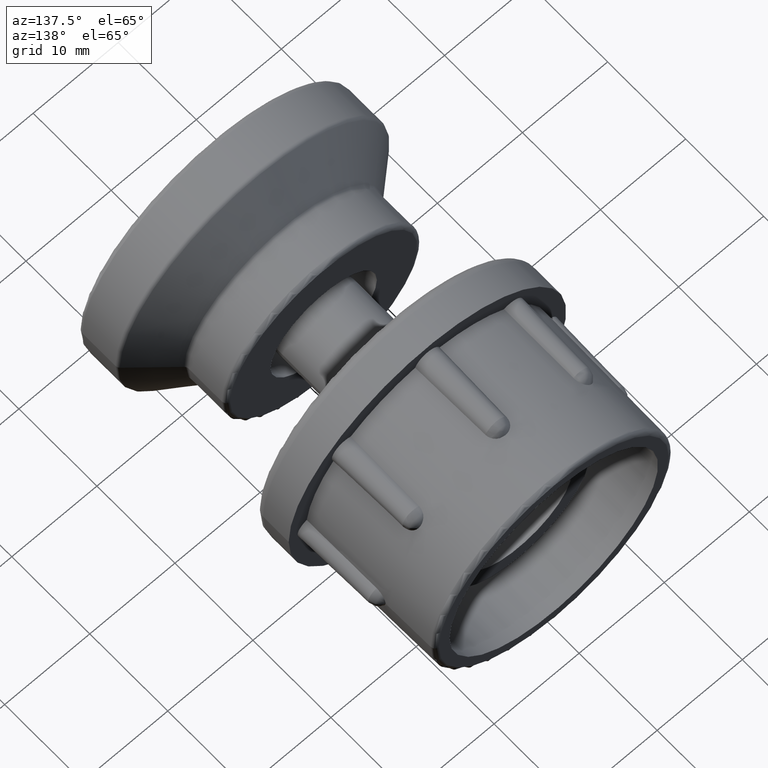
[diagram: clean part render]
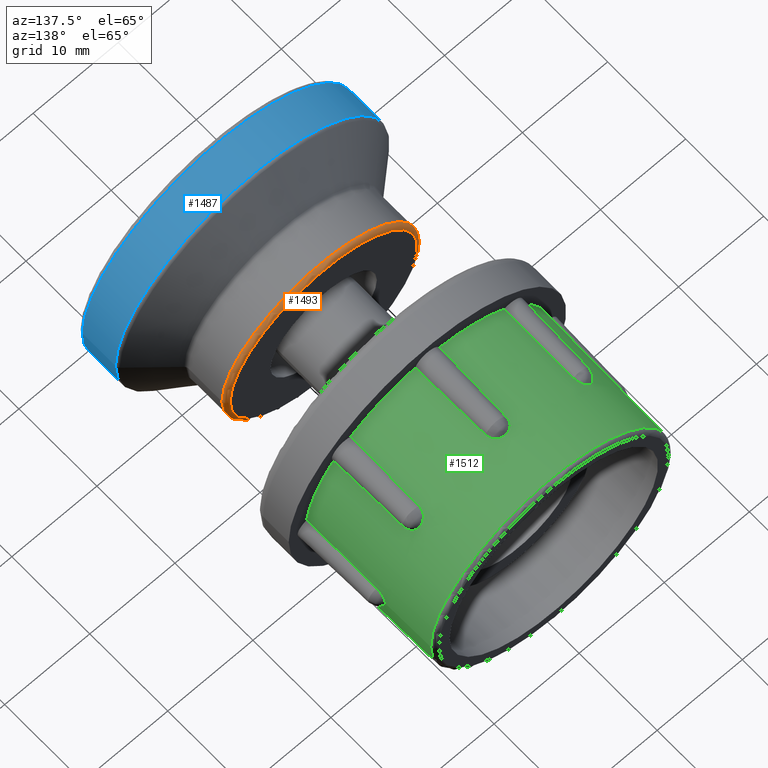
[diagram: same view with three faces highlighted in distinct colors, each labeled with its STEP entity id]
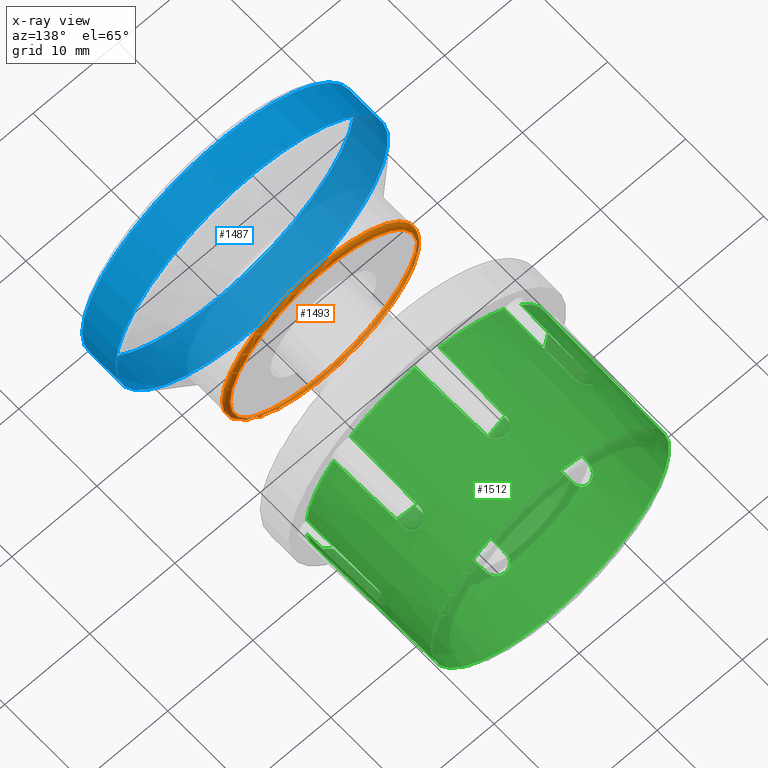
[diagram: x-ray of the same camera — body ghosted, the three highlighted faces saturated]
A machine part, auxiliary view with three faces highlighted in distinct colors.
The next image is the same camera in x-ray (body ghosted, the three faces saturated) — at least one of them is partly hidden behind the body in this view.
Their STEP definitions:

[orange] entity #1493 — the highlighted toroidal blend (fillet) surface has major radius 11 mm and minor (blend) radius 0.5 mm.
#54=FACE_BOUND('',#347,.T.);
#96=CIRCLE('',#1609,11.5);
#97=CIRCLE('',#1611,11.);
#169=TOROIDAL_SURFACE('',#1610,11.,0.5);
#244=FACE_OUTER_BOUND('',#346,.T.);
#346=EDGE_LOOP('',(#1114));
#347=EDGE_LOOP('',(#1115));
#690=VERTEX_POINT('',#2475);
#691=VERTEX_POINT('',#2478);
#866=EDGE_CURVE('',#690,#690,#96,.T.);
#867=EDGE_CURVE('',#691,#691,#97,.T.);
#1114=ORIENTED_EDGE('',*,*,#867,.T.);
#1115=ORIENTED_EDGE('',*,*,#866,.T.);
#1493=ADVANCED_FACE('',(#244,#54),#169,.T.);
#1609=AXIS2_PLACEMENT_3D('',#2476,#1877,#1878);
#1610=AXIS2_PLACEMENT_3D('',#2477,#1879,#1880);
#1611=AXIS2_PLACEMENT_3D('',#2479,#1881,#1882);
#1877=DIRECTION('center_axis',(-6.34413156928661E-17,1.,0.));
#1878=DIRECTION('ref_axis',(-1.,-6.63720286460691E-17,1.22464679914735E-16));
#1879=DIRECTION('center_axis',(6.34413156928661E-17,-1.,0.));
#1880=DIRECTION('ref_axis',(0.,0.,-1.));
#1881=DIRECTION('center_axis',(6.34413156928661E-17,-1.,0.));
#1882=DIRECTION('ref_axis',(-1.,-6.34413156928661E-17,1.22464679914735E-16));
#2475=CARTESIAN_POINT('',(11.5,13.5,-2.81668763803891E-15));
#2476=CARTESIAN_POINT('Origin',(-8.56457761853692E-16,13.5,0.));
#2477=CARTESIAN_POINT('Origin',(-8.56457761853692E-16,13.5,0.));
#2478=CARTESIAN_POINT('',(11.,14.,0.));
#2479=CARTESIAN_POINT('Origin',(-8.88178419700125E-16,14.,0.));

[blue] entity #1487 — the highlighted cylindrical surface (bore or boss wall) has radius 16 mm, axis along (0, -1, 0).
#48=FACE_BOUND('',#335,.T.);
#89=CIRCLE('',#1596,16.);
#91=CIRCLE('',#1599,16.);
#238=FACE_OUTER_BOUND('',#334,.T.);
#334=EDGE_LOOP('',(#1102));
#335=EDGE_LOOP('',(#1103));
#683=VERTEX_POINT('',#2455);
#685=VERTEX_POINT('',#2460);
#859=EDGE_CURVE('',#683,#683,#89,.T.);
#861=EDGE_CURVE('',#685,#685,#91,.T.);
#1102=ORIENTED_EDGE('',*,*,#861,.F.);
#1103=ORIENTED_EDGE('',*,*,#859,.F.);
#1452=CYLINDRICAL_SURFACE('',#1598,16.);
#1487=ADVANCED_FACE('',(#238,#48),#1452,.T.);
#1596=AXIS2_PLACEMENT_3D('',#2456,#1851,#1852);
#1598=AXIS2_PLACEMENT_3D('',#2459,#1855,#1856);
#1599=AXIS2_PLACEMENT_3D('',#2461,#1857,#1858);
#1851=DIRECTION('center_axis',(6.34413156928661E-17,-1.,0.));
#1852=DIRECTION('ref_axis',(-1.,-6.50521303491303E-17,1.22464679914735E-16));
#1855=DIRECTION('center_axis',(6.34413156928661E-17,-1.,0.));
#1856=DIRECTION('ref_axis',(1.,0.,0.));
#1857=DIRECTION('center_axis',(-6.34413156928661E-17,1.,0.));
#1858=DIRECTION('ref_axis',(-1.,-6.28837260041592E-17,1.22464679914735E-16));
#2455=CARTESIAN_POINT('',(16.,0.500000000000001,0.));
#2456=CARTESIAN_POINT('Origin',(-3.17206578464331E-17,0.5,0.));
#2459=CARTESIAN_POINT('Origin',(-1.58603289232165E-16,2.5,0.));
#2460=CARTESIAN_POINT('',(16.,4.77546696784487,-3.91886975727153E-15));
#2461=CARTESIAN_POINT('Origin',(-3.029619074879E-16,4.77546696784487,0.));

[green] entity #1512 — the highlighted conical surface has half-angle 0.884 deg.
#36=CONICAL_SURFACE('',#1647,14.125,0.88412394813542);
#62=FACE_BOUND('',#374,.T.);
#113=CIRCLE('',#1646,14.0075969887228);
#114=CIRCLE('',#1648,14.0956790123457);
#115=CIRCLE('',#1649,14.25);
#116=CIRCLE('',#1650,14.0956790123457);
#117=CIRCLE('',#1651,14.25);
#118=CIRCLE('',#1652,14.0956790123457);
#119=CIRCLE('',#1653,14.25);
#120=CIRCLE('',#1654,14.0956790123457);
#121=CIRCLE('',#1655,14.25);
#122=CIRCLE('',#1656,14.0956790123457);
#123=CIRCLE('',#1657,14.25);
#124=CIRCLE('',#1658,14.0956790123457);
#125=CIRCLE('',#1659,14.25);
#126=CIRCLE('',#1660,14.0956790123457);
#127=CIRCLE('',#1661,14.25);
#128=CIRCLE('',#1662,14.0956790123457);
#129=CIRCLE('',#1663,14.25);
#263=FACE_OUTER_BOUND('',#373,.T.);
#373=EDGE_LOOP('',(#1193,#1194,#1195,#1196,#1197,#1198,#1199,#1200,#1201,
#1202,#1203,#1204,#1205,#1206,#1207,#1208,#1209,#1210,#1211,#1212,#1213,
#1214,#1215,#1216,#1217,#1218,#1219,#1220,#1221,#1222,#1223,#1224,#1225,
#1226,#1227,#1228,#1229,#1230,#1231,#1232,#1233,#1234,#1235,#1236,#1237,
#1238,#1239,#1240));
#374=EDGE_LOOP('',(#1241));
#593=B_SPLINE_CURVE_WITH_KNOTS('',3,(#2527,#2528,#2529,#2530,#2531,#2532,
#2533,#2534,#2535,#2536,#2537,#2538),.UNSPECIFIED.,.F.,.F.,(4,2,2,2,2,4),
(-0.000379013862063512,0.,0.0453814855915477,0.0929031405091482,0.139948719220565,
0.18694614654894),.UNSPECIFIED.);
#594=B_SPLINE_CURVE_WITH_KNOTS('',3,(#2540,#2541,#2542,#2543),
 .UNSPECIFIED.,.F.,.F.,(4,4),(0.950565035569072,1.75547874629555),
 .UNSPECIFIED.);
#595=B_SPLINE_CURVE_WITH_KNOTS('',3,(#2547,#2548,#2549,#2550),
 .UNSPECIFIED.,.F.,.F.,(4,4),(1.05797740173543,1.86289111242481),
 .UNSPECIFIED.);
#596=B_SPLINE_CURVE_WITH_KNOTS('',3,(#2552,#2553,#2554,#2555,#2556,#2557,
#2558,#2559,#2560,#2561,#2562,#2563),.UNSPECIFIED.,.F.,.F.,(4,2,2,2,2,4),
(0.,0.0469805317942725,0.094007138460679,0.141508406436631,0.186867982397869,
0.187247399132836),.UNSPECIFIED.);
#597=B_SPLINE_CURVE_WITH_KNOTS('',3,(#2567,#2568,#2569,#2570,#2571,#2572,
#2573,#2574,#2575,#2576,#2577,#2578),.UNSPECIFIED.,.F.,.F.,(4,2,2,2,2,4),
(-0.000378974034157717,0.,0.0453813920769773,0.0929028929783797,0.13994872102175,
0.186946186835641),.UNSPECIFIED.);
#598=B_SPLINE_CURVE_WITH_KNOTS('',3,(#2580,#2581,#2582,#2583),
 .UNSPECIFIED.,.F.,.F.,(4,4),(0.950565035569072,1.75547874629555),
 .UNSPECIFIED.);
#599=B_SPLINE_CURVE_WITH_KNOTS('',3,(#2587,#2588,#2589,#2590),
 .UNSPECIFIED.,.F.,.F.,(4,4),(1.05797740173543,1.86289111242481),
 .UNSPECIFIED.);
#600=B_SPLINE_CURVE_WITH_KNOTS('',3,(#2592,#2593,#2594,#2595,#2596,#2597,
#2598,#2599,#2600,#2601,#2602,#2603),.UNSPECIFIED.,.F.,.F.,(4,2,2,2,2,4),
(0.,0.046978035112844,0.0940040837922088,0.141505736150607,0.186868456322115,
0.187247398408251),.UNSPECIFIED.);
#601=B_SPLINE_CURVE_WITH_KNOTS('',3,(#2607,#2608,#2609,#2610,#2611,#2612,
#2613,#2614,#2615,#2616,#2617,#2618),.UNSPECIFIED.,.F.,.F.,(4,2,2,2,2,4),
(-0.000379013862139177,0.,0.0453814855915133,0.0929031405090897,0.139948719220484,
0.186946146548834),.UNSPECIFIED.);
#602=B_SPLINE_CURVE_WITH_KNOTS('',3,(#2620,#2621,#2622,#2623),
 .UNSPECIFIED.,.F.,.F.,(4,4),(0.950565035569072,1.75547874629555),
 .UNSPECIFIED.);
#603=B_SPLINE_CURVE_WITH_KNOTS('',3,(#2627,#2628,#2629,#2630),
 .UNSPECIFIED.,.F.,.F.,(4,4),(1.05797740173543,1.86289111242481),
 .UNSPECIFIED.);
#604=B_SPLINE_CURVE_WITH_KNOTS('',3,(#2632,#2633,#2634,#2635,#2636,#2637,
#2638,#2639,#2640,#2641,#2642,#2643),.UNSPECIFIED.,.F.,.F.,(4,2,2,2,2,4),
(0.,0.0469805317943216,0.0940071384608325,0.141508406436862,0.18686798239821,
0.187247399133178),.UNSPECIFIED.);
#605=B_SPLINE_CURVE_WITH_KNOTS('',3,(#2647,#2648,#2649,#2650,#2651,#2652,
#2653,#2654,#2655,#2656,#2657,#2658),.UNSPECIFIED.,.F.,.F.,(4,2,2,2,2,4),
(-0.00037897403415772,0.,0.0453813920769795,0.0929028929783607,0.13994872102169,
0.186946186835653),.UNSPECIFIED.);
#606=B_SPLINE_CURVE_WITH_KNOTS('',3,(#2660,#2661,#2662,#2663),
 .UNSPECIFIED.,.F.,.F.,(4,4),(0.950565035569072,1.75547874629555),
 .UNSPECIFIED.);
#607=B_SPLINE_CURVE_WITH_KNOTS('',3,(#2667,#2668,#2669,#2670),
 .UNSPECIFIED.,.F.,.F.,(4,4),(1.05797740173543,1.86289111242481),
 .UNSPECIFIED.);
#608=B_SPLINE_CURVE_WITH_KNOTS('',3,(#2672,#2673,#2674,#2675,#2676,#2677,
#2678,#2679,#2680,#2681,#2682,#2683),.UNSPECIFIED.,.F.,.F.,(4,2,2,2,2,4),
(0.,0.0469780351128543,0.0940040837922518,0.141505736150693,0.186868456322202,
0.18724739840835),.UNSPECIFIED.);
#609=B_SPLINE_CURVE_WITH_KNOTS('',3,(#2687,#2688,#2689,#2690,#2691,#2692,
#2693,#2694,#2695,#2696,#2697,#2698),.UNSPECIFIED.,.F.,.F.,(4,2,2,2,2,4),
(-0.000379013862144601,0.,0.0453814855915176,0.0929031405090925,0.139948719220519,
0.186946146548905),.UNSPECIFIED.);
#610=B_SPLINE_CURVE_WITH_KNOTS('',3,(#2700,#2701,#2702,#2703),
 .UNSPECIFIED.,.F.,.F.,(4,4),(0.950565035569072,1.75547874629555),
 .UNSPECIFIED.);
#611=B_SPLINE_CURVE_WITH_KNOTS('',3,(#2707,#2708,#2709,#2710),
 .UNSPECIFIED.,.F.,.F.,(4,4),(1.05797740173543,1.86289111242481),
 .UNSPECIFIED.);
#612=B_SPLINE_CURVE_WITH_KNOTS('',3,(#2712,#2713,#2714,#2715,#2716,#2717,
#2718,#2719,#2720,#2721,#2722,#2723),.UNSPECIFIED.,.F.,.F.,(4,2,2,2,2,4),
(0.,0.0469805317942726,0.0940071384606629,0.141508406436578,0.186867982397796,
0.187247399132764),.UNSPECIFIED.);
#613=B_SPLINE_CURVE_WITH_KNOTS('',3,(#2727,#2728,#2729,#2730,#2731,#2732,
#2733,#2734,#2735,#2736,#2737,#2738),.UNSPECIFIED.,.F.,.F.,(4,2,2,2,2,4),
(-0.000378974034157413,0.,0.0453813920769803,0.0929028929783622,0.139948721021724,
0.186946186835705),.UNSPECIFIED.);
#614=B_SPLINE_CURVE_WITH_KNOTS('',3,(#2740,#2741,#2742,#2743),
 .UNSPECIFIED.,.F.,.F.,(4,4),(0.950565035569072,1.75547874629555),
 .UNSPECIFIED.);
#615=B_SPLINE_CURVE_WITH_KNOTS('',3,(#2747,#2748,#2749,#2750),
 .UNSPECIFIED.,.F.,.F.,(4,4),(1.05797740173543,1.86289111242481),
 .UNSPECIFIED.);
#616=B_SPLINE_CURVE_WITH_KNOTS('',3,(#2752,#2753,#2754,#2755,#2756,#2757,
#2758,#2759,#2760,#2761,#2762,#2763),.UNSPECIFIED.,.F.,.F.,(4,2,2,2,2,4),
(0.,0.046978035112812,0.0940040837921292,0.141505736150539,0.18686845632202,
0.187247398408194),.UNSPECIFIED.);
#617=B_SPLINE_CURVE_WITH_KNOTS('',3,(#2767,#2768,#2769,#2770,#2771,#2772,
#2773,#2774,#2775,#2776,#2777,#2778),.UNSPECIFIED.,.F.,.F.,(4,2,2,2,2,4),
(-0.000379013862060602,0.,0.0453814855915554,0.0929031405091313,0.139948719220552,
0.186946146548946),.UNSPECIFIED.);
#618=B_SPLINE_CURVE_WITH_KNOTS('',3,(#2780,#2781,#2782,#2783),
 .UNSPECIFIED.,.F.,.F.,(4,4),(0.950565035569072,1.75547874629555),
 .UNSPECIFIED.);
#619=B_SPLINE_CURVE_WITH_KNOTS('',3,(#2787,#2788,#2789,#2790),
 .UNSPECIFIED.,.F.,.F.,(4,4),(1.05797740173543,1.86289111242481),
 .UNSPECIFIED.);
#620=B_SPLINE_CURVE_WITH_KNOTS('',3,(#2792,#2793,#2794,#2795,#2796,#2797,
#2798,#2799,#2800,#2801,#2802,#2803),.UNSPECIFIED.,.F.,.F.,(4,2,2,2,2,4),
(0.,0.0469805317943687,0.094007138461021,0.141508406437178,0.186867982398605,
0.187247399133574),.UNSPECIFIED.);
#621=B_SPLINE_CURVE_WITH_KNOTS('',3,(#2807,#2808,#2809,#2810,#2811,#2812,
#2813,#2814,#2815,#2816,#2817,#2818),.UNSPECIFIED.,.F.,.F.,(4,2,2,2,2,4),
(-0.000378974034157524,0.,0.045381392077002,0.0929028929784136,0.139948721021815,
0.186946186835891),.UNSPECIFIED.);
#622=B_SPLINE_CURVE_WITH_KNOTS('',3,(#2820,#2821,#2822,#2823),
 .UNSPECIFIED.,.F.,.F.,(4,4),(0.950565035569072,1.75547874629555),
 .UNSPECIFIED.);
#623=B_SPLINE_CURVE_WITH_KNOTS('',3,(#2827,#2828,#2829,#2830),
 .UNSPECIFIED.,.F.,.F.,(4,4),(1.05797740173543,1.86289111242481),
 .UNSPECIFIED.);
#624=B_SPLINE_CURVE_WITH_KNOTS('',3,(#2831,#2832,#2833,#2834,#2835,#2836,
#2837,#2838,#2839,#2840,#2841,#2842),.UNSPECIFIED.,.F.,.F.,(4,2,2,2,2,4),
(0.,0.0469780351128034,0.0940040837920925,0.141505736150483,0.186868456321966,
0.187247398408142),.UNSPECIFIED.);
#698=VERTEX_POINT('',#2520);
#699=VERTEX_POINT('',#2523);
#700=VERTEX_POINT('',#2524);
#701=VERTEX_POINT('',#2526);
#702=VERTEX_POINT('',#2539);
#703=VERTEX_POINT('',#2544);
#704=VERTEX_POINT('',#2546);
#705=VERTEX_POINT('',#2551);
#706=VERTEX_POINT('',#2564);
#707=VERTEX_POINT('',#2566);
#708=VERTEX_POINT('',#2579);
#709=VERTEX_POINT('',#2584);
#710=VERTEX_POINT('',#2586);
#711=VERTEX_POINT('',#2591);
#712=VERTEX_POINT('',#2604);
#713=VERTEX_POINT('',#2606);
#714=VERTEX_POINT('',#2619);
#715=VERTEX_POINT('',#2624);
#716=VERTEX_POINT('',#2626);
#717=VERTEX_POINT('',#2631);
#718=VERTEX_POINT('',#2644);
#719=VERTEX_POINT('',#2646);
#720=VERTEX_POINT('',#2659);
#721=VERTEX_POINT('',#2664);
#722=VERTEX_POINT('',#2666);
#723=VERTEX_POINT('',#2671);
#724=VERTEX_POINT('',#2684);
#725=VERTEX_POINT('',#2686);
#726=VERTEX_POINT('',#2699);
#727=VERTEX_POINT('',#2704);
#728=VERTEX_POINT('',#2706);
#729=VERTEX_POINT('',#2711);
#730=VERTEX_POINT('',#2724);
#731=VERTEX_POINT('',#2726);
#732=VERTEX_POINT('',#2739);
#733=VERTEX_POINT('',#2744);
#734=VERTEX_POINT('',#2746);
#735=VERTEX_POINT('',#2751);
#736=VERTEX_POINT('',#2764);
#737=VERTEX_POINT('',#2766);
#738=VERTEX_POINT('',#2779);
#739=VERTEX_POINT('',#2784);
#740=VERTEX_POINT('',#2786);
#741=VERTEX_POINT('',#2791);
#742=VERTEX_POINT('',#2804);
#743=VERTEX_POINT('',#2806);
#744=VERTEX_POINT('',#2819);
#745=VERTEX_POINT('',#2824);
#746=VERTEX_POINT('',#2826);
#883=EDGE_CURVE('',#698,#698,#113,.T.);
#884=EDGE_CURVE('',#699,#700,#114,.T.);
#885=EDGE_CURVE('',#701,#700,#593,.F.);
#886=EDGE_CURVE('',#702,#701,#594,.T.);
#887=EDGE_CURVE('',#703,#702,#115,.T.);
#888=EDGE_CURVE('',#704,#703,#595,.T.);
#889=EDGE_CURVE('',#704,#705,#596,.T.);
#890=EDGE_CURVE('',#705,#706,#116,.T.);
#891=EDGE_CURVE('',#707,#706,#597,.F.);
#892=EDGE_CURVE('',#708,#707,#598,.T.);
#893=EDGE_CURVE('',#709,#708,#117,.T.);
#894=EDGE_CURVE('',#710,#709,#599,.T.);
#895=EDGE_CURVE('',#710,#711,#600,.T.);
#896=EDGE_CURVE('',#711,#712,#118,.T.);
#897=EDGE_CURVE('',#713,#712,#601,.F.);
#898=EDGE_CURVE('',#714,#713,#602,.T.);
#899=EDGE_CURVE('',#715,#714,#119,.T.);
#900=EDGE_CURVE('',#716,#715,#603,.T.);
#901=EDGE_CURVE('',#716,#717,#604,.T.);
#902=EDGE_CURVE('',#717,#718,#120,.T.);
#903=EDGE_CURVE('',#719,#718,#605,.F.);
#904=EDGE_CURVE('',#720,#719,#606,.T.);
#905=EDGE_CURVE('',#721,#720,#121,.T.);
#906=EDGE_CURVE('',#722,#721,#607,.T.);
#907=EDGE_CURVE('',#722,#723,#608,.T.);
#908=EDGE_CURVE('',#723,#724,#122,.T.);
#909=EDGE_CURVE('',#725,#724,#609,.F.);
#910=EDGE_CURVE('',#726,#725,#610,.T.);
#911=EDGE_CURVE('',#727,#726,#123,.T.);
#912=EDGE_CURVE('',#728,#727,#611,.T.);
#913=EDGE_CURVE('',#728,#729,#612,.T.);
#914=EDGE_CURVE('',#729,#730,#124,.T.);
#915=EDGE_CURVE('',#731,#730,#613,.F.);
#916=EDGE_CURVE('',#732,#731,#614,.T.);
#917=EDGE_CURVE('',#733,#732,#125,.T.);
#918=EDGE_CURVE('',#734,#733,#615,.T.);
#919=EDGE_CURVE('',#734,#735,#616,.T.);
#920=EDGE_CURVE('',#735,#736,#126,.T.);
#921=EDGE_CURVE('',#737,#736,#617,.F.);
#922=EDGE_CURVE('',#738,#737,#618,.T.);
#923=EDGE_CURVE('',#739,#738,#127,.T.);
#924=EDGE_CURVE('',#740,#739,#619,.T.);
#925=EDGE_CURVE('',#740,#741,#620,.T.);
#926=EDGE_CURVE('',#741,#742,#128,.T.);
#927=EDGE_CURVE('',#743,#742,#621,.F.);
#928=EDGE_CURVE('',#744,#743,#622,.T.);
#929=EDGE_CURVE('',#745,#744,#129,.T.);
#930=EDGE_CURVE('',#746,#745,#623,.T.);
#931=EDGE_CURVE('',#746,#699,#624,.T.);
#1193=ORIENTED_EDGE('',*,*,#884,.T.);
#1194=ORIENTED_EDGE('',*,*,#885,.F.);
#1195=ORIENTED_EDGE('',*,*,#886,.F.);
#1196=ORIENTED_EDGE('',*,*,#887,.F.);
#1197=ORIENTED_EDGE('',*,*,#888,.F.);
#1198=ORIENTED_EDGE('',*,*,#889,.T.);
#1199=ORIENTED_EDGE('',*,*,#890,.T.);
#1200=ORIENTED_EDGE('',*,*,#891,.F.);
#1201=ORIENTED_EDGE('',*,*,#892,.F.);
#1202=ORIENTED_EDGE('',*,*,#893,.F.);
#1203=ORIENTED_EDGE('',*,*,#894,.F.);
#1204=ORIENTED_EDGE('',*,*,#895,.T.);
#1205=ORIENTED_EDGE('',*,*,#896,.T.);
#1206=ORIENTED_EDGE('',*,*,#897,.F.);
#1207=ORIENTED_EDGE('',*,*,#898,.F.);
#1208=ORIENTED_EDGE('',*,*,#899,.F.);
#1209=ORIENTED_EDGE('',*,*,#900,.F.);
#1210=ORIENTED_EDGE('',*,*,#901,.T.);
#1211=ORIENTED_EDGE('',*,*,#902,.T.);
#1212=ORIENTED_EDGE('',*,*,#903,.F.);
#1213=ORIENTED_EDGE('',*,*,#904,.F.);
#1214=ORIENTED_EDGE('',*,*,#905,.F.);
#1215=ORIENTED_EDGE('',*,*,#906,.F.);
#1216=ORIENTED_EDGE('',*,*,#907,.T.);
#1217=ORIENTED_EDGE('',*,*,#908,.T.);
#1218=ORIENTED_EDGE('',*,*,#909,.F.);
#1219=ORIENTED_EDGE('',*,*,#910,.F.);
#1220=ORIENTED_EDGE('',*,*,#911,.F.);
#1221=ORIENTED_EDGE('',*,*,#912,.F.);
#1222=ORIENTED_EDGE('',*,*,#913,.T.);
#1223=ORIENTED_EDGE('',*,*,#914,.T.);
#1224=ORIENTED_EDGE('',*,*,#915,.F.);
#1225=ORIENTED_EDGE('',*,*,#916,.F.);
#1226=ORIENTED_EDGE('',*,*,#917,.F.);
#1227=ORIENTED_EDGE('',*,*,#918,.F.);
#1228=ORIENTED_EDGE('',*,*,#919,.T.);
#1229=ORIENTED_EDGE('',*,*,#920,.T.);
#1230=ORIENTED_EDGE('',*,*,#921,.F.);
#1231=ORIENTED_EDGE('',*,*,#922,.F.);
#1232=ORIENTED_EDGE('',*,*,#923,.F.);
#1233=ORIENTED_EDGE('',*,*,#924,.F.);
#1234=ORIENTED_EDGE('',*,*,#925,.T.);
#1235=ORIENTED_EDGE('',*,*,#926,.T.);
#1236=ORIENTED_EDGE('',*,*,#927,.F.);
#1237=ORIENTED_EDGE('',*,*,#928,.F.);
#1238=ORIENTED_EDGE('',*,*,#929,.F.);
#1239=ORIENTED_EDGE('',*,*,#930,.F.);
#1240=ORIENTED_EDGE('',*,*,#931,.T.);
#1241=ORIENTED_EDGE('',*,*,#883,.F.);
#1512=ADVANCED_FACE('',(#263,#62),#36,.T.);
#1646=AXIS2_PLACEMENT_3D('',#2521,#1951,#1952);
#1647=AXIS2_PLACEMENT_3D('',#2522,#1953,#1954);
#1648=AXIS2_PLACEMENT_3D('',#2525,#1955,#1956);
#1649=AXIS2_PLACEMENT_3D('',#2545,#1957,#1958);
#1650=AXIS2_PLACEMENT_3D('',#2565,#1959,#1960);
#1651=AXIS2_PLACEMENT_3D('',#2585,#1961,#1962);
#1652=AXIS2_PLACEMENT_3D('',#2605,#1963,#1964);
#1653=AXIS2_PLACEMENT_3D('',#2625,#1965,#1966);
#1654=AXIS2_PLACEMENT_3D('',#2645,#1967,#1968);
#1655=AXIS2_PLACEMENT_3D('',#2665,#1969,#1970);
#1656=AXIS2_PLACEMENT_3D('',#2685,#1971,#1972);
#1657=AXIS2_PLACEMENT_3D('',#2705,#1973,#1974);
#1658=AXIS2_PLACEMENT_3D('',#2725,#1975,#1976);
#1659=AXIS2_PLACEMENT_3D('',#2745,#1977,#1978);
#1660=AXIS2_PLACEMENT_3D('',#2765,#1979,#1980);
#1661=AXIS2_PLACEMENT_3D('',#2785,#1981,#1982);
#1662=AXIS2_PLACEMENT_3D('',#2805,#1983,#1984);
#1663=AXIS2_PLACEMENT_3D('',#2825,#1985,#1986);
#1951=DIRECTION('center_axis',(0.,1.,0.));
#1952=DIRECTION('ref_axis',(-1.,0.,1.75989524170371E-32));
#1953=DIRECTION('center_axis',(6.12323399573677E-17,-1.,0.));
#1954=DIRECTION('ref_axis',(1.,0.,0.));
#1955=DIRECTION('center_axis',(-4.32978028117746E-17,1.,4.32978028117747E-17));
#1956=DIRECTION('ref_axis',(1.,0.,0.));
#1957=DIRECTION('center_axis',(6.12323399573677E-17,-1.,0.));
#1958=DIRECTION('ref_axis',(1.,0.,0.));
#1959=DIRECTION('center_axis',(1.23259516440783E-32,1.,6.12323399573677E-17));
#1960=DIRECTION('ref_axis',(1.,0.,0.));
#1961=DIRECTION('center_axis',(6.12323399573677E-17,-1.,0.));
#1962=DIRECTION('ref_axis',(1.,0.,0.));
#1963=DIRECTION('center_axis',(4.32978028117747E-17,1.,4.32978028117747E-17));
#1964=DIRECTION('ref_axis',(1.,0.,0.));
#1965=DIRECTION('center_axis',(6.12323399573677E-17,-1.,0.));
#1966=DIRECTION('ref_axis',(1.,0.,0.));
#1967=DIRECTION('center_axis',(6.12323399573677E-17,1.,-1.23259516440783E-32));
#1968=DIRECTION('ref_axis',(1.,0.,0.));
#1969=DIRECTION('center_axis',(6.12323399573677E-17,-1.,0.));
#1970=DIRECTION('ref_axis',(1.,0.,0.));
#1971=DIRECTION('center_axis',(4.32978028117747E-17,1.,-4.32978028117747E-17));
#1972=DIRECTION('ref_axis',(1.,0.,0.));
#1973=DIRECTION('center_axis',(6.12323399573677E-17,-1.,0.));
#1974=DIRECTION('ref_axis',(1.,0.,0.));
#1975=DIRECTION('center_axis',(0.,1.,-6.12323399573677E-17));
#1976=DIRECTION('ref_axis',(1.,0.,0.));
#1977=DIRECTION('center_axis',(6.12323399573677E-17,-1.,0.));
#1978=DIRECTION('ref_axis',(1.,0.,0.));
#1979=DIRECTION('center_axis',(-4.32978028117747E-17,1.,-4.32978028117747E-17));
#1980=DIRECTION('ref_axis',(1.,0.,0.));
#1981=DIRECTION('center_axis',(6.12323399573677E-17,-1.,0.));
#1982=DIRECTION('ref_axis',(1.,0.,0.));
#1983=DIRECTION('center_axis',(-6.12323399573677E-17,1.,0.));
#1984=DIRECTION('ref_axis',(1.,0.,0.));
#1985=DIRECTION('center_axis',(6.12323399573677E-17,-1.,0.));
#1986=DIRECTION('ref_axis',(1.,0.,0.));
#2520=CARTESIAN_POINT('',(14.0075969887228,20.0077151307595,-3.43087176319711E-15));
#2521=CARTESIAN_POINT('Origin',(-1.11022302462516E-15,20.0077151307595,
-1.71543588159855E-15));
#2522=CARTESIAN_POINT('Origin',(-6.12323399573676E-16,12.4,0.));
#2523=CARTESIAN_POINT('',(-9.94564058402755,14.3,-9.988613527033));
#2524=CARTESIAN_POINT('',(-9.98861352703302,14.3,-9.94564058402753));
#2525=CARTESIAN_POINT('Origin',(-7.28664845492675E-16,14.3,0.));
#2526=CARTESIAN_POINT('',(-10.8190675021856,13.1279388323739,-9.06345296786435));
#2527=CARTESIAN_POINT('Ctrl Pts',(-9.98861352703302,14.3,-9.94564058402753));
#2528=CARTESIAN_POINT('Ctrl Pts',(-9.98950494338956,14.3,-9.94474531605541));
#2529=CARTESIAN_POINT('Ctrl Pts',(-9.99039626023341,14.2999980471888,-9.94384995000847));
#2530=CARTESIAN_POINT('Ctrl Pts',(-10.0979976032491,14.2995265005918,-9.83573587000773));
#2531=CARTESIAN_POINT('Ctrl Pts',(-10.2022938496477,14.2710718505792,-9.72799037685983));
#2532=CARTESIAN_POINT('Ctrl Pts',(-10.4004780657432,14.1583000060975,-9.51848909122465));
#2533=CARTESIAN_POINT('Ctrl Pts',(-10.4918414570208,14.0724459053128,-9.41921108209697));
#2534=CARTESIAN_POINT('Ctrl Pts',(-10.6451226813155,13.8546516923569,-9.25073852336818));
#2535=CARTESIAN_POINT('Ctrl Pts',(-10.7058991922973,13.7252669068108,-9.18292004246414));
#2536=CARTESIAN_POINT('Ctrl Pts',(-10.7912892497041,13.4386844474635,-9.08928723110222));
#2537=CARTESIAN_POINT('Ctrl Pts',(-10.8150922960477,13.2844783390126,-9.06443636024146));
#2538=CARTESIAN_POINT('Ctrl Pts',(-10.8190675021857,13.1279388323739,-9.06345296786439));
#2539=CARTESIAN_POINT('',(-11.0415654136413,4.3,-9.00812595472994));
#2540=CARTESIAN_POINT('Ctrl Pts',(-11.0415654136413,4.3,-9.00812595472994));
#2541=CARTESIAN_POINT('Ctrl Pts',(-10.9684100839927,7.22216402710317,-9.02645871820172));
#2542=CARTESIAN_POINT('Ctrl Pts',(-10.893570611603,10.1940834330653,-9.04502227840438));
#2543=CARTESIAN_POINT('Ctrl Pts',(-10.8190675021857,13.1279388323739,-9.06345296786437));
#2544=CARTESIAN_POINT('',(-14.1772727272727,4.3,-1.43785883052855));
#2545=CARTESIAN_POINT('Origin',(-1.16341445918998E-16,4.3,0.));
#2546=CARTESIAN_POINT('',(-14.0590650514528,13.1279388323739,-1.24140694236823));
#2547=CARTESIAN_POINT('Ctrl Pts',(-14.0590650514527,13.1279388323739,-1.24140694236824));
#2548=CARTESIAN_POINT('Ctrl Pts',(-14.0987142398273,10.1940834341634,-1.30712106173123));
#2549=CARTESIAN_POINT('Ctrl Pts',(-14.1385073189437,7.22216402886583,-1.37316697944628));
#2550=CARTESIAN_POINT('Ctrl Pts',(-14.1772727272727,4.3,-1.43785883052855));
#2551=CARTESIAN_POINT('',(-14.0956462598267,14.3,-0.0303864594067092));
#2552=CARTESIAN_POINT('Ctrl Pts',(-14.0590650514527,13.1279388323739,-1.24140694236823));
#2553=CARTESIAN_POINT('Ctrl Pts',(-14.0569494019497,13.2844870486074,-1.23790048865075));
#2554=CARTESIAN_POINT('Ctrl Pts',(-14.0576905365095,13.4387015143203,-1.20349334364273));
#2555=CARTESIAN_POINT('Ctrl Pts',(-14.0635196927852,13.7252908880166,-1.0768945738825));
#2556=CARTESIAN_POINT('Ctrl Pts',(-14.0684993442758,13.8546750583209,-0.985959990059592));
#2557=CARTESIAN_POINT('Ctrl Pts',(-14.0792413047753,14.0724631062312,-0.758440277260632));
#2558=CARTESIAN_POINT('Ctrl Pts',(-14.0848376067196,14.1583128702355,-0.623636362882334));
#2559=CARTESIAN_POINT('Ctrl Pts',(-14.0928393564719,14.2710743088845,-0.335368453543239));
#2560=CARTESIAN_POINT('Ctrl Pts',(-14.0952780748655,14.2995258234836,-0.18544240913658));
#2561=CARTESIAN_POINT('Ctrl Pts',(-14.0956406646365,14.2999980414094,-0.0329169478225179));
#2562=CARTESIAN_POINT('Ctrl Pts',(-14.0956435322961,14.3,-0.0316517041250913));
#2563=CARTESIAN_POINT('Ctrl Pts',(-14.0956462598267,14.3,-0.0303864594067092));
#2564=CARTESIAN_POINT('',(-14.0956462598267,14.3,0.0303864594067092));
#2565=CARTESIAN_POINT('Origin',(-7.28664845492675E-16,14.3,0.));
#2566=CARTESIAN_POINT('',(-14.0590650514527,13.1279388323739,1.24140694236824));
#2567=CARTESIAN_POINT('Ctrl Pts',(-14.0956462598267,14.3,0.0303864594067092));
#2568=CARTESIAN_POINT('Ctrl Pts',(-14.0956435366094,14.3,0.0316497032519727));
#2569=CARTESIAN_POINT('Ctrl Pts',(-14.095640673706,14.2999980475992,0.0329129460801942));
#2570=CARTESIAN_POINT('Ctrl Pts',(-14.0952781185082,14.2995265519274,0.185446340191689));
#2571=CARTESIAN_POINT('Ctrl Pts',(-14.0928391457931,14.2710720668945,0.335382197847258));
#2572=CARTESIAN_POINT('Ctrl Pts',(-14.0848368067717,14.1583008359782,0.623658735809088));
#2573=CARTESIAN_POINT('Ctrl Pts',(-14.0792403541231,14.0724472499977,0.758462265668531));
#2574=CARTESIAN_POINT('Ctrl Pts',(-14.0684984407373,13.8546533553302,0.98597729249222));
#2575=CARTESIAN_POINT('Ctrl Pts',(-14.063518976562,13.7252679946586,1.07690834920908));
#2576=CARTESIAN_POINT('Ctrl Pts',(-14.0576904448453,13.4386846987051,1.20349711263561));
#2577=CARTESIAN_POINT('Ctrl Pts',(-14.0569495179216,13.2844784672267,1.23790068086127));
#2578=CARTESIAN_POINT('Ctrl Pts',(-14.0590650514527,13.1279388323739,1.24140694236824));
#2579=CARTESIAN_POINT('',(-14.1772727272727,4.3,1.43785883052855));
#2580=CARTESIAN_POINT('Ctrl Pts',(-14.1772727272727,4.3,1.43785883052855));
#2581=CARTESIAN_POINT('Ctrl Pts',(-14.138507318967,7.22216402710316,1.37316697948531));
#2582=CARTESIAN_POINT('Ctrl Pts',(-14.0987142398421,10.1940834330653,1.30712106175584));
#2583=CARTESIAN_POINT('Ctrl Pts',(-14.0590650514527,13.1279388323739,1.24140694236824));
#2584=CARTESIAN_POINT('',(-11.0415654136413,4.3,9.00812595472995));
#2585=CARTESIAN_POINT('Origin',(-1.16341445918998E-16,4.3,0.));
#2586=CARTESIAN_POINT('',(-10.8190675021857,13.1279388323739,9.06345296786438));
#2587=CARTESIAN_POINT('Ctrl Pts',(-10.8190675021857,13.1279388323739,9.06345296786438));
#2588=CARTESIAN_POINT('Ctrl Pts',(-10.8935706115751,10.1940834341634,9.04502227841128));
#2589=CARTESIAN_POINT('Ctrl Pts',(-10.9684100839486,7.22216402886583,9.02645871821278));
#2590=CARTESIAN_POINT('Ctrl Pts',(-11.0415654136413,4.3,9.00812595472995));
#2591=CARTESIAN_POINT('',(-9.98861352703301,14.3,9.94564058402754));
#2592=CARTESIAN_POINT('Ctrl Pts',(-10.8190675021857,13.1279388323739,9.0634529678644));
#2593=CARTESIAN_POINT('Ctrl Pts',(-10.8150922861396,13.2844787291821,9.06443636269253));
#2594=CARTESIAN_POINT('Ctrl Pts',(-10.7912891314806,13.4386852120194,9.08928735521919));
#2595=CARTESIAN_POINT('Ctrl Pts',(-10.7058987858459,13.7252679027679,9.18292049367508));
#2596=CARTESIAN_POINT('Ctrl Pts',(-10.6451221920569,13.8546525984652,9.25073906630396));
#2597=CARTESIAN_POINT('Ctrl Pts',(-10.4918412706054,14.0724459571212,9.41921128174689));
#2598=CARTESIAN_POINT('Ctrl Pts',(-10.4004784284228,14.158299574625,9.51848869037171));
#2599=CARTESIAN_POINT('Ctrl Pts',(-10.2022947624997,14.2710715461038,9.72798942855687));
#2600=CARTESIAN_POINT('Ctrl Pts',(-10.0979983731666,14.2995263915857,9.83573508571041));
#2601=CARTESIAN_POINT('Ctrl Pts',(-9.99039666280625,14.2999980463067,9.94384954560675));
#2602=CARTESIAN_POINT('Ctrl Pts',(-9.98950514469868,14.3,9.94474511387647));
#2603=CARTESIAN_POINT('Ctrl Pts',(-9.98861352703301,14.3,9.94564058402754));
#2604=CARTESIAN_POINT('',(-9.94564058402754,14.3,9.98861352703301));
#2605=CARTESIAN_POINT('Origin',(-7.28664845492675E-16,14.3,0.));
#2606=CARTESIAN_POINT('',(-9.06345296786436,13.1279388323739,10.8190675021857));
#2607=CARTESIAN_POINT('Ctrl Pts',(-9.94564058402754,14.3,9.98861352703301));
#2608=CARTESIAN_POINT('Ctrl Pts',(-9.94474531605523,14.3,9.98950494338973));
#2609=CARTESIAN_POINT('Ctrl Pts',(-9.94384995000843,14.2999980471888,9.99039626023345));
#2610=CARTESIAN_POINT('Ctrl Pts',(-9.8357358700076,14.2995265005917,10.0979976032492));
#2611=CARTESIAN_POINT('Ctrl Pts',(-9.72799037685976,14.2710718505792,10.2022938496478));
#2612=CARTESIAN_POINT('Ctrl Pts',(-9.51848909122469,14.1583000060976,10.4004780657431));
#2613=CARTESIAN_POINT('Ctrl Pts',(-9.41921108209694,14.0724459053128,10.4918414570207));
#2614=CARTESIAN_POINT('Ctrl Pts',(-9.2507385233681,13.8546516923569,10.6451226813155));
#2615=CARTESIAN_POINT('Ctrl Pts',(-9.18292004246411,13.7252669068108,10.7058991922972));
#2616=CARTESIAN_POINT('Ctrl Pts',(-9.0892872311022,13.4386844474636,10.7912892497041));
#2617=CARTESIAN_POINT('Ctrl Pts',(-9.06443636024145,13.2844783390127,10.8150922960477));
#2618=CARTESIAN_POINT('Ctrl Pts',(-9.06345296786439,13.1279388323739,10.8190675021857));
#2619=CARTESIAN_POINT('',(-9.00812595472994,4.3,11.0415654136413));
#2620=CARTESIAN_POINT('Ctrl Pts',(-9.00812595472995,4.3,11.0415654136413));
#2621=CARTESIAN_POINT('Ctrl Pts',(-9.02645871820172,7.22216402710316,10.9684100839927));
#2622=CARTESIAN_POINT('Ctrl Pts',(-9.04502227840438,10.1940834330653,10.893570611603));
#2623=CARTESIAN_POINT('Ctrl Pts',(-9.06345296786437,13.1279388323739,10.8190675021857));
#2624=CARTESIAN_POINT('',(-1.43785883052855,4.3,14.1772727272727));
#2625=CARTESIAN_POINT('Origin',(-1.16341445918998E-16,4.3,0.));
#2626=CARTESIAN_POINT('',(-1.24140694236824,13.1279388323739,14.0590650514527));
#2627=CARTESIAN_POINT('Ctrl Pts',(-1.24140694236824,13.1279388323739,14.0590650514527));
#2628=CARTESIAN_POINT('Ctrl Pts',(-1.30712106173123,10.1940834341634,14.0987142398273));
#2629=CARTESIAN_POINT('Ctrl Pts',(-1.37316697944628,7.22216402886583,14.1385073189437));
#2630=CARTESIAN_POINT('Ctrl Pts',(-1.43785883052855,4.3,14.1772727272727));
#2631=CARTESIAN_POINT('',(-0.0303864594067074,14.3,14.0956462598267));
#2632=CARTESIAN_POINT('Ctrl Pts',(-1.24140694236824,13.1279388323739,14.0590650514527));
#2633=CARTESIAN_POINT('Ctrl Pts',(-1.23790048865075,13.2844870486075,14.0569494019497));
#2634=CARTESIAN_POINT('Ctrl Pts',(-1.20349334364261,13.4387015143206,14.0576905365095));
#2635=CARTESIAN_POINT('Ctrl Pts',(-1.07689457388253,13.7252908880165,14.0635196927852));
#2636=CARTESIAN_POINT('Ctrl Pts',(-0.985959990059741,13.8546750583208,14.0684993442757));
#2637=CARTESIAN_POINT('Ctrl Pts',(-0.758440277260586,14.0724631062313,14.0792413047752));
#2638=CARTESIAN_POINT('Ctrl Pts',(-0.623636362882186,14.1583128702356,14.0848376067196));
#2639=CARTESIAN_POINT('Ctrl Pts',(-0.335368453543222,14.2710743088845,14.0928393564719));
#2640=CARTESIAN_POINT('Ctrl Pts',(-0.185442409136569,14.2995258234836,14.0952780748655));
#2641=CARTESIAN_POINT('Ctrl Pts',(-0.0329169478225138,14.2999980414094,
14.0956406646365));
#2642=CARTESIAN_POINT('Ctrl Pts',(-0.0316517041250908,14.3,14.0956435322961));
#2643=CARTESIAN_POINT('Ctrl Pts',(-0.0303864594067074,14.3,14.0956462598267));
#2644=CARTESIAN_POINT('',(0.0303864594067108,14.3,14.0956462598267));
#2645=CARTESIAN_POINT('Origin',(-7.28664845492675E-16,14.3,0.));
#2646=CARTESIAN_POINT('',(1.24140694236824,13.1279388323739,14.0590650514527));
#2647=CARTESIAN_POINT('Ctrl Pts',(0.0303864594067108,14.3,14.0956462598267));
#2648=CARTESIAN_POINT('Ctrl Pts',(0.0316497032519743,14.3,14.0956435366094));
#2649=CARTESIAN_POINT('Ctrl Pts',(0.0329129460801949,14.2999980475992,14.095640673706));
#2650=CARTESIAN_POINT('Ctrl Pts',(0.185446340191697,14.2995265519274,14.0952781185082));
#2651=CARTESIAN_POINT('Ctrl Pts',(0.335382197847267,14.2710720668945,14.0928391457931));
#2652=CARTESIAN_POINT('Ctrl Pts',(0.623658735809025,14.1583008359782,14.0848368067717));
#2653=CARTESIAN_POINT('Ctrl Pts',(0.758462265668522,14.0724472499977,14.0792403541231));
#2654=CARTESIAN_POINT('Ctrl Pts',(0.985977292492222,13.8546533553302,14.0684984407372));
#2655=CARTESIAN_POINT('Ctrl Pts',(1.07690834920911,13.7252679946586,14.0635189765619));
#2656=CARTESIAN_POINT('Ctrl Pts',(1.2034971126358,13.4386846987047,14.0576904448452));
#2657=CARTESIAN_POINT('Ctrl Pts',(1.23790068086128,13.2844784672265,14.0569495179216));
#2658=CARTESIAN_POINT('Ctrl Pts',(1.24140694236824,13.1279388323739,14.0590650514527));
#2659=CARTESIAN_POINT('',(1.43785883052855,4.3,14.1772727272727));
#2660=CARTESIAN_POINT('Ctrl Pts',(1.43785883052855,4.3,14.1772727272727));
#2661=CARTESIAN_POINT('Ctrl Pts',(1.37316697948531,7.22216402710316,14.138507318967));
#2662=CARTESIAN_POINT('Ctrl Pts',(1.30712106175584,10.1940834330653,14.0987142398421));
#2663=CARTESIAN_POINT('Ctrl Pts',(1.24140694236825,13.1279388323739,14.0590650514527));
#2664=CARTESIAN_POINT('',(9.00812595472995,4.3,11.0415654136413));
#2665=CARTESIAN_POINT('Origin',(-1.16341445918998E-16,4.3,0.));
#2666=CARTESIAN_POINT('',(9.0634529678644,13.1279388323739,10.8190675021857));
#2667=CARTESIAN_POINT('Ctrl Pts',(9.06345296786437,13.1279388323739,10.8190675021857));
#2668=CARTESIAN_POINT('Ctrl Pts',(9.04502227841128,10.1940834341634,10.8935706115751));
#2669=CARTESIAN_POINT('Ctrl Pts',(9.02645871821278,7.22216402886583,10.9684100839486));
#2670=CARTESIAN_POINT('Ctrl Pts',(9.00812595472995,4.3,11.0415654136413));
#2671=CARTESIAN_POINT('',(9.94564058402754,14.3,9.98861352703301));
#2672=CARTESIAN_POINT('Ctrl Pts',(9.06345296786436,13.1279388323739,10.8190675021856));
#2673=CARTESIAN_POINT('Ctrl Pts',(9.06443636269249,13.2844787291821,10.8150922861396));
#2674=CARTESIAN_POINT('Ctrl Pts',(9.08928735521919,13.4386852120195,10.7912891314806));
#2675=CARTESIAN_POINT('Ctrl Pts',(9.18292049367506,13.7252679027679,10.7058987858459));
#2676=CARTESIAN_POINT('Ctrl Pts',(9.25073906630395,13.8546525984652,10.6451221920569));
#2677=CARTESIAN_POINT('Ctrl Pts',(9.41921128174689,14.0724459571212,10.4918412706054));
#2678=CARTESIAN_POINT('Ctrl Pts',(9.51848869037175,14.158299574625,10.4004784284228));
#2679=CARTESIAN_POINT('Ctrl Pts',(9.72798942855678,14.2710715461038,10.2022947624998));
#2680=CARTESIAN_POINT('Ctrl Pts',(9.83573508571018,14.2995263915856,10.0979983731668));
#2681=CARTESIAN_POINT('Ctrl Pts',(9.94384954560646,14.2999980463067,9.99039666280654));
#2682=CARTESIAN_POINT('Ctrl Pts',(9.94474511387645,14.3,9.9895051446987));
#2683=CARTESIAN_POINT('Ctrl Pts',(9.94564058402754,14.3,9.98861352703301));
#2684=CARTESIAN_POINT('',(9.98861352703301,14.3,9.94564058402754));
#2685=CARTESIAN_POINT('Origin',(-7.28664845492675E-16,14.3,0.));
#2686=CARTESIAN_POINT('',(10.8190675021856,13.1279388323739,9.0634529678643));
#2687=CARTESIAN_POINT('Ctrl Pts',(9.98861352703301,14.3,9.94564058402754));
#2688=CARTESIAN_POINT('Ctrl Pts',(9.98950494338974,14.3,9.94474531605522));
#2689=CARTESIAN_POINT('Ctrl Pts',(9.99039626023343,14.2999980471888,9.94384995000846));
#2690=CARTESIAN_POINT('Ctrl Pts',(10.0979976032492,14.2995265005917,9.8357358700076));
#2691=CARTESIAN_POINT('Ctrl Pts',(10.2022938496478,14.2710718505791,9.72799037685976));
#2692=CARTESIAN_POINT('Ctrl Pts',(10.4004780657431,14.1583000060976,9.51848909122471));
#2693=CARTESIAN_POINT('Ctrl Pts',(10.4918414570207,14.0724459053128,9.41921108209693));
#2694=CARTESIAN_POINT('Ctrl Pts',(10.6451226813155,13.8546516923568,9.25073852336802));
#2695=CARTESIAN_POINT('Ctrl Pts',(10.7058991922973,13.7252669068107,9.18292004246416));
#2696=CARTESIAN_POINT('Ctrl Pts',(10.7912892497041,13.4386844474636,9.08928723110229));
#2697=CARTESIAN_POINT('Ctrl Pts',(10.8150922960477,13.2844783390127,9.06443636024145));
#2698=CARTESIAN_POINT('Ctrl Pts',(10.8190675021857,13.1279388323739,9.06345296786439));
#2699=CARTESIAN_POINT('',(11.0415654136413,4.3,9.00812595472995));
#2700=CARTESIAN_POINT('Ctrl Pts',(11.0415654136413,4.3,9.00812595472995));
#2701=CARTESIAN_POINT('Ctrl Pts',(10.9684100839927,7.22216402710317,9.02645871820172));
#2702=CARTESIAN_POINT('Ctrl Pts',(10.893570611603,10.1940834330653,9.04502227840438));
#2703=CARTESIAN_POINT('Ctrl Pts',(10.8190675021857,13.1279388323739,9.06345296786437));
#2704=CARTESIAN_POINT('',(14.1772727272727,4.3,1.43785883052855));
#2705=CARTESIAN_POINT('Origin',(-1.16341445918998E-16,4.3,0.));
#2706=CARTESIAN_POINT('',(14.0590650514527,13.1279388323739,1.24140694236824));
#2707=CARTESIAN_POINT('Ctrl Pts',(14.0590650514527,13.1279388323739,1.24140694236824));
#2708=CARTESIAN_POINT('Ctrl Pts',(14.0987142398273,10.1940834341634,1.30712106173124));
#2709=CARTESIAN_POINT('Ctrl Pts',(14.1385073189437,7.22216402886583,1.37316697944629));
#2710=CARTESIAN_POINT('Ctrl Pts',(14.1772727272727,4.3,1.43785883052855));
#2711=CARTESIAN_POINT('',(14.0956462598267,14.3,0.0303864594067089));
#2712=CARTESIAN_POINT('Ctrl Pts',(14.0590650514527,13.1279388323739,1.24140694236824));
#2713=CARTESIAN_POINT('Ctrl Pts',(14.0569494019497,13.2844870486074,1.23790048865075));
#2714=CARTESIAN_POINT('Ctrl Pts',(14.0576905365095,13.4387015143203,1.20349334364273));
#2715=CARTESIAN_POINT('Ctrl Pts',(14.0635196927852,13.7252908880166,1.07689457388252));
#2716=CARTESIAN_POINT('Ctrl Pts',(14.0684993442758,13.8546750583209,0.985959990059676));
#2717=CARTESIAN_POINT('Ctrl Pts',(14.0792413047752,14.0724631062312,0.758440277260631));
#2718=CARTESIAN_POINT('Ctrl Pts',(14.0848376067196,14.1583128702356,0.623636362882304));
#2719=CARTESIAN_POINT('Ctrl Pts',(14.0928393564719,14.2710743088845,0.335368453543225));
#2720=CARTESIAN_POINT('Ctrl Pts',(14.0952780748655,14.2995258234836,0.185442409136546));
#2721=CARTESIAN_POINT('Ctrl Pts',(14.0956406646365,14.2999980414094,0.0329169478225162));
#2722=CARTESIAN_POINT('Ctrl Pts',(14.0956435322961,14.3,0.0316517041250948));
#2723=CARTESIAN_POINT('Ctrl Pts',(14.0956462598267,14.3,0.0303864594067089));
#2724=CARTESIAN_POINT('',(14.0956462598267,14.3,-0.0303864594067099));
#2725=CARTESIAN_POINT('Origin',(-7.28664845492675E-16,14.3,0.));
#2726=CARTESIAN_POINT('',(14.0590650514527,13.1279388323739,-1.24140694236824));
#2727=CARTESIAN_POINT('Ctrl Pts',(14.0956462598267,14.3,-0.0303864594067099));
#2728=CARTESIAN_POINT('Ctrl Pts',(14.0956435366094,14.3,-0.0316497032519724));
#2729=CARTESIAN_POINT('Ctrl Pts',(14.095640673706,14.2999980475992,-0.0329129460801931));
#2730=CARTESIAN_POINT('Ctrl Pts',(14.0952781185082,14.2995265519274,-0.185446340191697));
#2731=CARTESIAN_POINT('Ctrl Pts',(14.0928391457931,14.2710720668945,-0.335382197847272));
#2732=CARTESIAN_POINT('Ctrl Pts',(14.0848368067717,14.1583008359782,-0.62365873580904));
#2733=CARTESIAN_POINT('Ctrl Pts',(14.0792403541231,14.0724472499977,-0.758462265668531));
#2734=CARTESIAN_POINT('Ctrl Pts',(14.0684984407372,13.8546533553301,-0.985977292492304));
#2735=CARTESIAN_POINT('Ctrl Pts',(14.063518976562,13.7252679946585,-1.07690834920911));
#2736=CARTESIAN_POINT('Ctrl Pts',(14.0576904448453,13.4386846987048,-1.20349711263574));
#2737=CARTESIAN_POINT('Ctrl Pts',(14.0569495179216,13.2844784672265,-1.23790068086128));
#2738=CARTESIAN_POINT('Ctrl Pts',(14.0590650514527,13.1279388323739,-1.24140694236824));
#2739=CARTESIAN_POINT('',(14.1772727272727,4.3,-1.43785883052855));
#2740=CARTESIAN_POINT('Ctrl Pts',(14.1772727272727,4.3,-1.43785883052855));
#2741=CARTESIAN_POINT('Ctrl Pts',(14.138507318967,7.22216402710316,-1.37316697948531));
#2742=CARTESIAN_POINT('Ctrl Pts',(14.0987142398421,10.1940834330653,-1.30712106175583));
#2743=CARTESIAN_POINT('Ctrl Pts',(14.0590650514527,13.1279388323739,-1.24140694236824));
#2744=CARTESIAN_POINT('',(11.0415654136413,4.3,-9.00812595472995));
#2745=CARTESIAN_POINT('Origin',(-1.16341445918998E-16,4.3,0.));
#2746=CARTESIAN_POINT('',(10.8190675021856,13.1279388323739,-9.06345296786436));
#2747=CARTESIAN_POINT('Ctrl Pts',(10.8190675021857,13.1279388323739,-9.06345296786437));
#2748=CARTESIAN_POINT('Ctrl Pts',(10.8935706115751,10.1940834341634,-9.04502227841128));
#2749=CARTESIAN_POINT('Ctrl Pts',(10.9684100839486,7.22216402886583,-9.02645871821278));
#2750=CARTESIAN_POINT('Ctrl Pts',(11.0415654136413,4.3,-9.00812595472995));
#2751=CARTESIAN_POINT('',(9.98861352703301,14.3,-9.94564058402754));
#2752=CARTESIAN_POINT('Ctrl Pts',(10.8190675021857,13.1279388323739,-9.06345296786441));
#2753=CARTESIAN_POINT('Ctrl Pts',(10.8150922861396,13.284478729182,-9.06443636269254));
#2754=CARTESIAN_POINT('Ctrl Pts',(10.7912891314806,13.4386852120193,-9.08928735521904));
#2755=CARTESIAN_POINT('Ctrl Pts',(10.7058987858458,13.725267902768,-9.18292049367503));
#2756=CARTESIAN_POINT('Ctrl Pts',(10.6451221920568,13.8546525984653,-9.25073906630415));
#2757=CARTESIAN_POINT('Ctrl Pts',(10.4918412706055,14.0724459571211,-9.41921128174692));
#2758=CARTESIAN_POINT('Ctrl Pts',(10.4004784284228,14.1582995746249,-9.51848869037164));
#2759=CARTESIAN_POINT('Ctrl Pts',(10.2022947624998,14.2710715461038,-9.72798942855682));
#2760=CARTESIAN_POINT('Ctrl Pts',(10.0979983731667,14.2995263915857,-9.83573508571034));
#2761=CARTESIAN_POINT('Ctrl Pts',(9.99039666280627,14.2999980463067,-9.94384954560673));
#2762=CARTESIAN_POINT('Ctrl Pts',(9.98950514469877,14.3,-9.94474511387638));
#2763=CARTESIAN_POINT('Ctrl Pts',(9.98861352703301,14.3,-9.94564058402754));
#2764=CARTESIAN_POINT('',(9.94564058402754,14.3,-9.98861352703301));
#2765=CARTESIAN_POINT('Origin',(-7.28664845492675E-16,14.3,0.));
#2766=CARTESIAN_POINT('',(9.06345296786436,13.1279388323739,-10.8190675021857));
#2767=CARTESIAN_POINT('Ctrl Pts',(9.94564058402754,14.3,-9.98861352703301));
#2768=CARTESIAN_POINT('Ctrl Pts',(9.94474531605542,14.3,-9.98950494338955));
#2769=CARTESIAN_POINT('Ctrl Pts',(9.94384995000846,14.2999980471888,-9.99039626023342));
#2770=CARTESIAN_POINT('Ctrl Pts',(9.83573587000771,14.2995265005918,-10.0979976032491));
#2771=CARTESIAN_POINT('Ctrl Pts',(9.72799037685984,14.2710718505792,-10.2022938496477));
#2772=CARTESIAN_POINT('Ctrl Pts',(9.51848909122476,14.1583000060976,-10.4004780657431));
#2773=CARTESIAN_POINT('Ctrl Pts',(9.41921108209693,14.0724459053128,-10.4918414570207));
#2774=CARTESIAN_POINT('Ctrl Pts',(9.25073852336801,13.8546516923568,-10.6451226813155));
#2775=CARTESIAN_POINT('Ctrl Pts',(9.18292004246415,13.7252669068107,-10.7058991922973));
#2776=CARTESIAN_POINT('Ctrl Pts',(9.08928723110227,13.4386844474636,-10.7912892497041));
#2777=CARTESIAN_POINT('Ctrl Pts',(9.06443636024142,13.2844783390127,-10.8150922960477));
#2778=CARTESIAN_POINT('Ctrl Pts',(9.06345296786436,13.1279388323739,-10.8190675021856));
#2779=CARTESIAN_POINT('',(9.00812595472995,4.3,-11.0415654136413));
#2780=CARTESIAN_POINT('Ctrl Pts',(9.00812595472995,4.3,-11.0415654136413));
#2781=CARTESIAN_POINT('Ctrl Pts',(9.02645871820172,7.22216402710316,-10.9684100839927));
#2782=CARTESIAN_POINT('Ctrl Pts',(9.04502227840438,10.1940834330653,-10.893570611603));
#2783=CARTESIAN_POINT('Ctrl Pts',(9.06345296786437,13.1279388323739,-10.8190675021857));
#2784=CARTESIAN_POINT('',(1.43785883052855,4.3,-14.1772727272727));
#2785=CARTESIAN_POINT('Origin',(-1.16341445918998E-16,4.3,0.));
#2786=CARTESIAN_POINT('',(1.24140694236824,13.1279388323739,-14.0590650514527));
#2787=CARTESIAN_POINT('Ctrl Pts',(1.24140694236824,13.1279388323739,-14.0590650514527));
#2788=CARTESIAN_POINT('Ctrl Pts',(1.30712106173124,10.1940834341634,-14.0987142398273));
#2789=CARTESIAN_POINT('Ctrl Pts',(1.37316697944629,7.22216402886583,-14.1385073189437));
#2790=CARTESIAN_POINT('Ctrl Pts',(1.43785883052855,4.3,-14.1772727272727));
#2791=CARTESIAN_POINT('',(0.0303864594067076,14.3,-14.0956462598267));
#2792=CARTESIAN_POINT('Ctrl Pts',(1.24140694236824,13.1279388323739,-14.0590650514527));
#2793=CARTESIAN_POINT('Ctrl Pts',(1.23790048865075,13.2844870486077,-14.0569494019497));
#2794=CARTESIAN_POINT('Ctrl Pts',(1.20349334364247,13.4387015143208,-14.0576905365096));
#2795=CARTESIAN_POINT('Ctrl Pts',(1.07689457388249,13.7252908880166,-14.0635196927853));
#2796=CARTESIAN_POINT('Ctrl Pts',(0.985959990059668,13.8546750583209,-14.0684993442758));
#2797=CARTESIAN_POINT('Ctrl Pts',(0.758440277260631,14.0724631062312,-14.0792413047753));
#2798=CARTESIAN_POINT('Ctrl Pts',(0.623636362882358,14.1583128702355,-14.0848376067196));
#2799=CARTESIAN_POINT('Ctrl Pts',(0.335368453543212,14.2710743088845,-14.0928393564719));
#2800=CARTESIAN_POINT('Ctrl Pts',(0.185442409136536,14.2995258234836,-14.0952780748655));
#2801=CARTESIAN_POINT('Ctrl Pts',(0.0329169478225154,14.2999980414094,-14.0956406646365));
#2802=CARTESIAN_POINT('Ctrl Pts',(0.0316517041250931,14.3,-14.0956435322961));
#2803=CARTESIAN_POINT('Ctrl Pts',(0.0303864594067076,14.3,-14.0956462598267));
#2804=CARTESIAN_POINT('',(-0.0303864594067105,14.3,-14.0956462598267));
#2805=CARTESIAN_POINT('Origin',(-7.28664845492675E-16,14.3,0.));
#2806=CARTESIAN_POINT('',(-1.24140694236825,13.1279388323739,-14.0590650514527));
#2807=CARTESIAN_POINT('Ctrl Pts',(-0.0303864594067105,14.3,-14.0956462598267));
#2808=CARTESIAN_POINT('Ctrl Pts',(-0.0316497032519733,14.3,-14.0956435366094));
#2809=CARTESIAN_POINT('Ctrl Pts',(-0.0329129460801935,14.2999980475992,
-14.095640673706));
#2810=CARTESIAN_POINT('Ctrl Pts',(-0.185446340191769,14.2995265519274,-14.0952781185082));
#2811=CARTESIAN_POINT('Ctrl Pts',(-0.335382197847309,14.2710720668945,-14.0928391457931));
#2812=CARTESIAN_POINT('Ctrl Pts',(-0.623658735809033,14.1583008359782,-14.0848368067717));
#2813=CARTESIAN_POINT('Ctrl Pts',(-0.75846226566853,14.0724472499977,-14.0792403541231));
#2814=CARTESIAN_POINT('Ctrl Pts',(-0.985977292492331,13.8546533553301,-14.0684984407373));
#2815=CARTESIAN_POINT('Ctrl Pts',(-1.07690834920911,13.7252679946585,-14.0635189765621));
#2816=CARTESIAN_POINT('Ctrl Pts',(-1.20349711263579,13.4386846987047,-14.0576904448454));
#2817=CARTESIAN_POINT('Ctrl Pts',(-1.23790068086128,13.2844784672264,-14.0569495179216));
#2818=CARTESIAN_POINT('Ctrl Pts',(-1.24140694236824,13.1279388323739,-14.0590650514527));
#2819=CARTESIAN_POINT('',(-1.43785883052855,4.3,-14.1772727272727));
#2820=CARTESIAN_POINT('Ctrl Pts',(-1.43785883052855,4.3,-14.1772727272727));
#2821=CARTESIAN_POINT('Ctrl Pts',(-1.37316697948531,7.22216402710316,-14.138507318967));
#2822=CARTESIAN_POINT('Ctrl Pts',(-1.30712106175583,10.1940834330653,-14.0987142398421));
#2823=CARTESIAN_POINT('Ctrl Pts',(-1.24140694236824,13.1279388323739,-14.0590650514527));
#2824=CARTESIAN_POINT('',(-9.00812595472995,4.3,-11.0415654136413));
#2825=CARTESIAN_POINT('Origin',(-1.16341445918998E-16,4.3,0.));
#2826=CARTESIAN_POINT('',(-9.06345296786438,13.1279388323739,-10.8190675021857));
#2827=CARTESIAN_POINT('Ctrl Pts',(-9.06345296786438,13.1279388323739,-10.8190675021857));
#2828=CARTESIAN_POINT('Ctrl Pts',(-9.04502227841129,10.1940834341634,-10.8935706115751));
#2829=CARTESIAN_POINT('Ctrl Pts',(-9.02645871821279,7.22216402886583,-10.9684100839486));
#2830=CARTESIAN_POINT('Ctrl Pts',(-9.00812595472995,4.3,-11.0415654136413));
#2831=CARTESIAN_POINT('Ctrl Pts',(-9.06345296786436,13.1279388323739,-10.8190675021856));
#2832=CARTESIAN_POINT('Ctrl Pts',(-9.06443636269249,13.284478729182,-10.8150922861396));
#2833=CARTESIAN_POINT('Ctrl Pts',(-9.08928735521899,13.4386852120192,-10.7912891314806));
#2834=CARTESIAN_POINT('Ctrl Pts',(-9.182920493675,13.725267902768,-10.7058987858458));
#2835=CARTESIAN_POINT('Ctrl Pts',(-9.25073906630411,13.8546525984653,-10.6451221920568));
#2836=CARTESIAN_POINT('Ctrl Pts',(-9.41921128174691,14.0724459571212,-10.4918412706054));
#2837=CARTESIAN_POINT('Ctrl Pts',(-9.51848869037173,14.158299574625,-10.4004784284228));
#2838=CARTESIAN_POINT('Ctrl Pts',(-9.72798942855684,14.2710715461038,-10.2022947624998));
#2839=CARTESIAN_POINT('Ctrl Pts',(-9.83573508571033,14.2995263915857,-10.0979983731667));
#2840=CARTESIAN_POINT('Ctrl Pts',(-9.94384954560675,14.2999980463067,-9.99039666280625));
#2841=CARTESIAN_POINT('Ctrl Pts',(-9.94474511387638,14.3,-9.98950514469877));
#2842=CARTESIAN_POINT('Ctrl Pts',(-9.94564058402755,14.3,-9.988613527033));